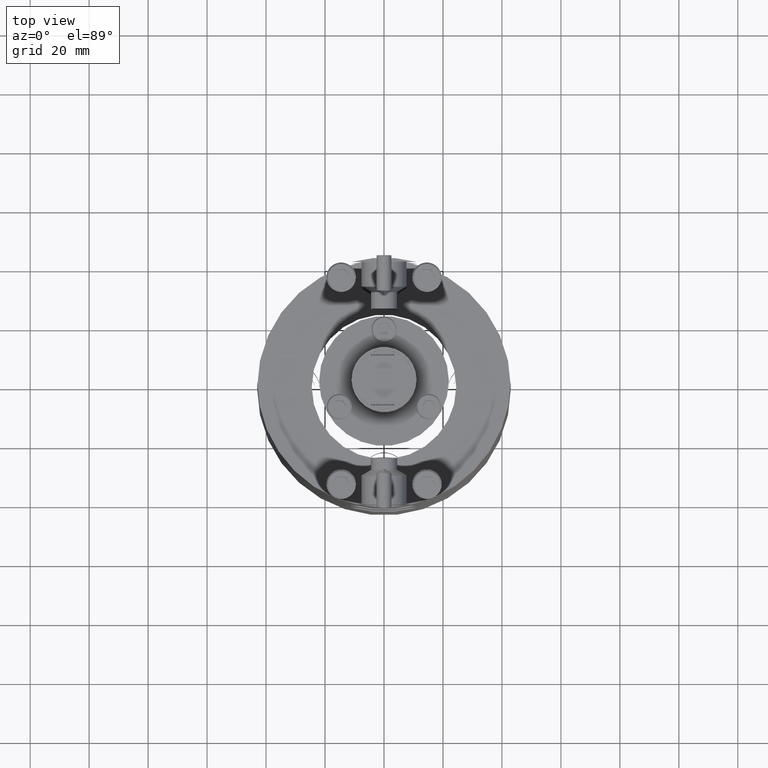
[diagram: clean part render]
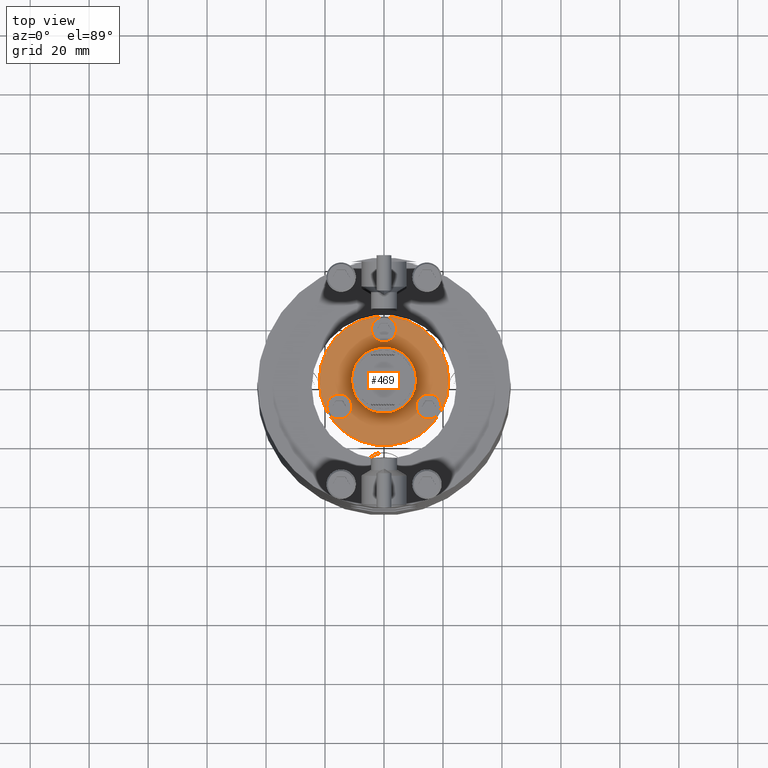
[diagram: same view with one face highlighted and labeled with its STEP entity id]
A machine part, top view. The second image highlights one B-rep face of the part: STEP entity #469.
In plain terms, the highlighted planar face has unit normal (0, 0, 1).
Its self-contained STEP definition (entity closure, byte-faithful):
#143 = CARTESIAN_POINT ( 'NONE',  ( 0.0000000000000000000, 0.0000000000000000000, 149.4000000000000300 ) ) ;
#170 = CIRCLE ( 'NONE', #213, 22.00000000000000000 ) ;
#213 = AXIS2_PLACEMENT_3D ( 'NONE', #2060, #6889, #2764 ) ;
#222 = EDGE_CURVE ( 'NONE', #4986, #320, #3707, .T. ) ;
#269 = DIRECTION ( 'NONE',  ( 0.0000000000000000000, 0.0000000000000000000, 1.000000000000000000 ) ) ;
#320 = VERTEX_POINT ( 'NONE', #8252 ) ;
#331 = VERTEX_POINT ( 'NONE', #4122 ) ;
#469 = ADVANCED_FACE ( 'NONE', ( #1197, #3078, #8808, #8370, #6511 ), #3496, .T. ) ;
#491 = AXIS2_PLACEMENT_3D ( 'NONE', #942, #5801, #1652 ) ;
#531 = CIRCLE ( 'NONE', #1637, 4.250000000000000000 ) ;
#572 = EDGE_CURVE ( 'NONE', #4878, #7804, #531, .T. ) ;
#581 = AXIS2_PLACEMENT_3D ( 'NONE', #3919, #8743, #4611 ) ;
#837 = DIRECTION ( 'NONE',  ( 1.000000000000000000, 0.0000000000000000000, 0.0000000000000000000 ) ) ;
#942 = CARTESIAN_POINT ( 'NONE',  ( 0.0000000000000000000, 0.0000000000000000000, 149.4000000000000300 ) ) ;
#953 = EDGE_LOOP ( 'NONE', ( #1286, #8741 ) ) ;
#989 = CIRCLE ( 'NONE', #5609, 4.250000000000000900 ) ;
#1125 = VERTEX_POINT ( 'NONE', #3964 ) ;
#1197 = FACE_BOUND ( 'NONE', #953, .T. ) ;
#1281 = EDGE_LOOP ( 'NONE', ( #3952, #2763 ) ) ;
#1286 = ORIENTED_EDGE ( 'NONE', *, *, #3406, .F. ) ;
#1304 = CARTESIAN_POINT ( 'NONE',  ( 0.0000000000000000000, 17.50000000000000000, 149.4000000000000300 ) ) ;
#1353 = AXIS2_PLACEMENT_3D ( 'NONE', #3206, #8028, #3891 ) ;
#1555 = CARTESIAN_POINT ( 'NONE',  ( 11.00000000000000000, 1.347111479062088400E-015, 149.4000000000000300 ) ) ;
#1581 = DIRECTION ( 'NONE',  ( 0.0000000000000000000, 0.0000000000000000000, 1.000000000000000000 ) ) ;
#1637 = AXIS2_PLACEMENT_3D ( 'NONE', #1304, #6159, #2032 ) ;
#1645 = EDGE_CURVE ( 'NONE', #3100, #3996, #2947, .T. ) ;
#1652 = DIRECTION ( 'NONE',  ( 1.000000000000000000, 0.0000000000000000000, 0.0000000000000000000 ) ) ;
#1839 = EDGE_CURVE ( 'NONE', #7120, #331, #8559, .T. ) ;
#1994 = ORIENTED_EDGE ( 'NONE', *, *, #572, .F. ) ;
#1998 = CIRCLE ( 'NONE', #1353, 22.00000000000000000 ) ;
#2032 = DIRECTION ( 'NONE',  ( 1.000000000000000000, 0.0000000000000000000, 0.0000000000000000000 ) ) ;
#2060 = CARTESIAN_POINT ( 'NONE',  ( 0.0000000000000000000, 0.0000000000000000000, 149.4000000000000300 ) ) ;
#2335 = CARTESIAN_POINT ( 'NONE',  ( -15.15544456622775700, -8.749999999999859700, 149.4000000000000300 ) ) ;
#2369 = ORIENTED_EDGE ( 'NONE', *, *, #8731, .T. ) ;
#2404 = CARTESIAN_POINT ( 'NONE',  ( 19.40544456622764400, -8.750000000000072800, 149.4000000000000300 ) ) ;
#2600 = ORIENTED_EDGE ( 'NONE', *, *, #2831, .F. ) ;
#2763 = ORIENTED_EDGE ( 'NONE', *, *, #222, .T. ) ;
#2764 = DIRECTION ( 'NONE',  ( 1.000000000000000000, 0.0000000000000000000, 0.0000000000000000000 ) ) ;
#2831 = EDGE_CURVE ( 'NONE', #7804, #4878, #6423, .T. ) ;
#2886 = EDGE_CURVE ( 'NONE', #3996, #3100, #8607, .T. ) ;
#2916 = ORIENTED_EDGE ( 'NONE', *, *, #2886, .F. ) ;
#2947 = CIRCLE ( 'NONE', #3593, 4.250000000000000000 ) ;
#2984 = VERTEX_POINT ( 'NONE', #7967 ) ;
#3039 = DIRECTION ( 'NONE',  ( -0.4999999999999918400, 0.8660254037844432600, 0.0000000000000000000 ) ) ;
#3078 = FACE_BOUND ( 'NONE', #1281, .T. ) ;
#3100 = VERTEX_POINT ( 'NONE', #5307 ) ;
#3204 = AXIS2_PLACEMENT_3D ( 'NONE', #5740, #1581, #6428 ) ;
#3206 = CARTESIAN_POINT ( 'NONE',  ( 0.0000000000000000000, 0.0000000000000000000, 149.4000000000000300 ) ) ;
#3406 = EDGE_CURVE ( 'NONE', #331, #7120, #989, .T. ) ;
#3496 = PLANE ( 'NONE',  #8321 ) ;
#3593 = AXIS2_PLACEMENT_3D ( 'NONE', #2335, #7155, #3039 ) ;
#3707 = CIRCLE ( 'NONE', #8037, 11.00000000000000000 ) ;
#3891 = DIRECTION ( 'NONE',  ( 1.000000000000000000, 0.0000000000000000000, 0.0000000000000000000 ) ) ;
#3919 = CARTESIAN_POINT ( 'NONE',  ( 15.15544456622764000, -8.750000000000072800, 149.4000000000000300 ) ) ;
#3952 = ORIENTED_EDGE ( 'NONE', *, *, #7082, .T. ) ;
#3964 = CARTESIAN_POINT ( 'NONE',  ( -22.00000000000000000, 0.0000000000000000000, 149.4000000000000300 ) ) ;
#3996 = VERTEX_POINT ( 'NONE', #5231 ) ;
#4055 = DIRECTION ( 'NONE',  ( 0.0000000000000000000, 0.0000000000000000000, 1.000000000000000000 ) ) ;
#4122 = CARTESIAN_POINT ( 'NONE',  ( 10.90544456622764000, -8.750000000000072800, 149.4000000000000300 ) ) ;
#4192 = DIRECTION ( 'NONE',  ( 0.0000000000000000000, 0.0000000000000000000, 1.000000000000000000 ) ) ;
#4196 = CARTESIAN_POINT ( 'NONE',  ( 4.250000000000000000, 17.50000000000000000, 149.4000000000000300 ) ) ;
#4303 = CIRCLE ( 'NONE', #491, 11.00000000000000000 ) ;
#4461 = CARTESIAN_POINT ( 'NONE',  ( -15.15544456622775700, -8.749999999999859700, 149.4000000000000300 ) ) ;
#4496 = EDGE_CURVE ( 'NONE', #2984, #1125, #1998, .T. ) ;
#4611 = DIRECTION ( 'NONE',  ( -0.5000000000000040000, -0.8660254037844364900, 0.0000000000000000000 ) ) ;
#4878 = VERTEX_POINT ( 'NONE', #4196 ) ;
#4986 = VERTEX_POINT ( 'NONE', #1555 ) ;
#5032 = DIRECTION ( 'NONE',  ( -0.0000000000000000000, -0.0000000000000000000, -1.000000000000000000 ) ) ;
#5157 = DIRECTION ( 'NONE',  ( -0.4999999999999918400, 0.8660254037844432600, 0.0000000000000000000 ) ) ;
#5231 = CARTESIAN_POINT ( 'NONE',  ( -19.40544456622776100, -8.749999999999859700, 149.4000000000000300 ) ) ;
#5307 = CARTESIAN_POINT ( 'NONE',  ( -10.90544456622775700, -8.749999999999859700, 149.4000000000000300 ) ) ;
#5609 = AXIS2_PLACEMENT_3D ( 'NONE', #8192, #4055, #8897 ) ;
#5740 = CARTESIAN_POINT ( 'NONE',  ( 0.0000000000000000000, 17.50000000000000000, 149.4000000000000300 ) ) ;
#5801 = DIRECTION ( 'NONE',  ( -0.0000000000000000000, -0.0000000000000000000, -1.000000000000000000 ) ) ;
#6082 = ORIENTED_EDGE ( 'NONE', *, *, #1645, .F. ) ;
#6159 = DIRECTION ( 'NONE',  ( 0.0000000000000000000, 0.0000000000000000000, 1.000000000000000000 ) ) ;
#6330 = EDGE_LOOP ( 'NONE', ( #2600, #1994 ) ) ;
#6423 = CIRCLE ( 'NONE', #3204, 4.250000000000000000 ) ;
#6428 = DIRECTION ( 'NONE',  ( 1.000000000000000000, 0.0000000000000000000, 0.0000000000000000000 ) ) ;
#6511 = FACE_BOUND ( 'NONE', #6933, .T. ) ;
#6887 = AXIS2_PLACEMENT_3D ( 'NONE', #4461, #269, #5157 ) ;
#6889 = DIRECTION ( 'NONE',  ( 0.0000000000000000000, 0.0000000000000000000, 1.000000000000000000 ) ) ;
#6933 = EDGE_LOOP ( 'NONE', ( #2916, #6082 ) ) ;
#7082 = EDGE_CURVE ( 'NONE', #320, #4986, #4303, .T. ) ;
#7120 = VERTEX_POINT ( 'NONE', #2404 ) ;
#7155 = DIRECTION ( 'NONE',  ( 0.0000000000000000000, 0.0000000000000000000, 1.000000000000000000 ) ) ;
#7473 = EDGE_LOOP ( 'NONE', ( #2369, #8878 ) ) ;
#7794 = CARTESIAN_POINT ( 'NONE',  ( -4.250000000000000000, 17.50000000000000000, 149.4000000000000300 ) ) ;
#7804 = VERTEX_POINT ( 'NONE', #7794 ) ;
#7967 = CARTESIAN_POINT ( 'NONE',  ( 22.00000000000000000, 2.694222958124176800E-015, 149.4000000000000300 ) ) ;
#8028 = DIRECTION ( 'NONE',  ( 0.0000000000000000000, 0.0000000000000000000, 1.000000000000000000 ) ) ;
#8037 = AXIS2_PLACEMENT_3D ( 'NONE', #143, #5032, #837 ) ;
#8192 = CARTESIAN_POINT ( 'NONE',  ( 15.15544456622764000, -8.750000000000072800, 149.4000000000000300 ) ) ;
#8252 = CARTESIAN_POINT ( 'NONE',  ( -11.00000000000000000, 0.0000000000000000000, 149.4000000000000300 ) ) ;
#8316 = CARTESIAN_POINT ( 'NONE',  ( 0.0000000000000000000, 0.0000000000000000000, 149.4000000000000300 ) ) ;
#8321 = AXIS2_PLACEMENT_3D ( 'NONE', #8316, #4192, #9032 ) ;
#8370 = FACE_BOUND ( 'NONE', #6330, .T. ) ;
#8559 = CIRCLE ( 'NONE', #581, 4.250000000000000900 ) ;
#8607 = CIRCLE ( 'NONE', #6887, 4.250000000000000000 ) ;
#8731 = EDGE_CURVE ( 'NONE', #1125, #2984, #170, .T. ) ;
#8741 = ORIENTED_EDGE ( 'NONE', *, *, #1839, .F. ) ;
#8743 = DIRECTION ( 'NONE',  ( 0.0000000000000000000, 0.0000000000000000000, 1.000000000000000000 ) ) ;
#8808 = FACE_OUTER_BOUND ( 'NONE', #7473, .T. ) ;
#8878 = ORIENTED_EDGE ( 'NONE', *, *, #4496, .T. ) ;
#8897 = DIRECTION ( 'NONE',  ( -0.5000000000000040000, -0.8660254037844364900, 0.0000000000000000000 ) ) ;
#9032 = DIRECTION ( 'NONE',  ( 1.000000000000000000, 0.0000000000000000000, -0.0000000000000000000 ) ) ;